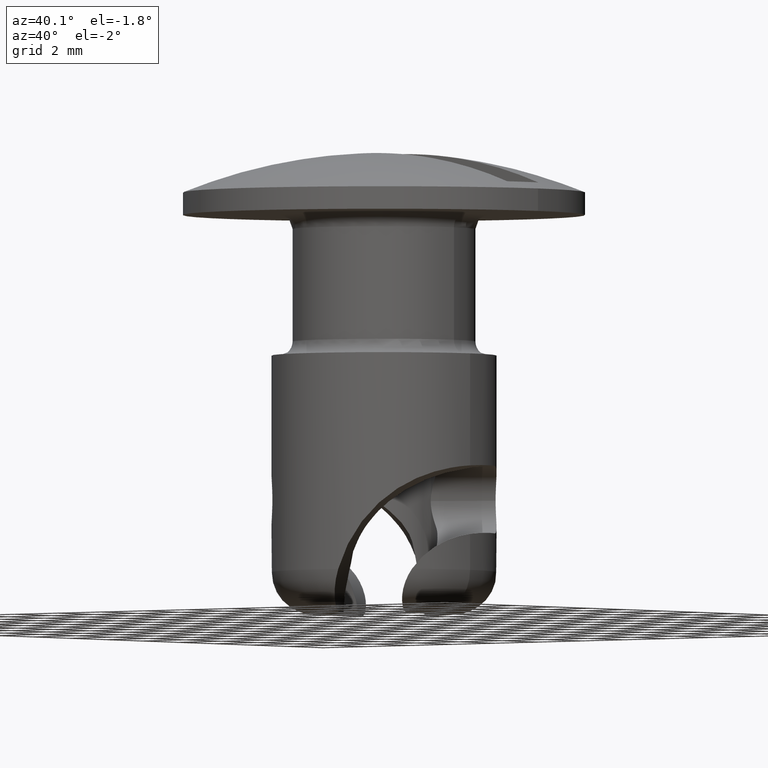
[diagram: clean part render]
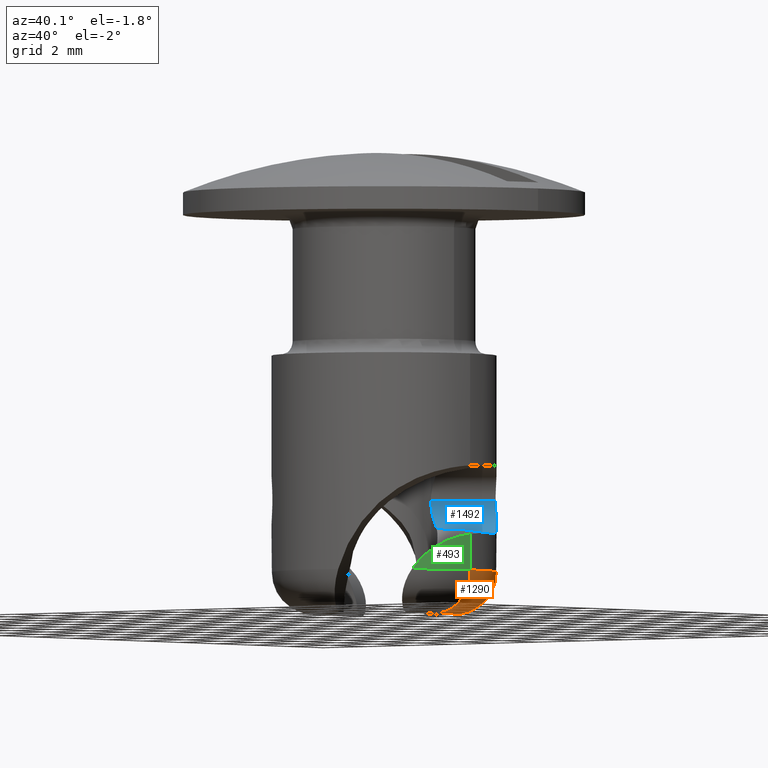
[diagram: same view with three faces highlighted in distinct colors, each labeled with its STEP entity id]
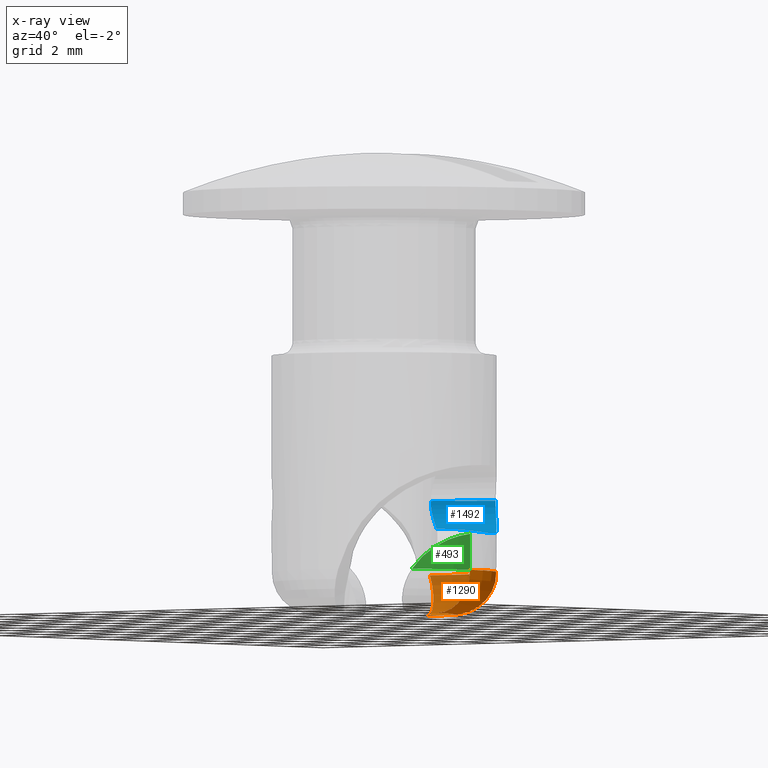
[diagram: x-ray of the same camera — body ghosted, the three highlighted faces saturated]
A machine part, auxiliary view with three faces highlighted in distinct colors.
The next image is the same camera in x-ray (body ghosted, the three faces saturated) — at least one of them is partly hidden behind the body in this view.
Their STEP definitions:

[orange] entity #1290 — the highlighted toroidal blend (fillet) surface has major radius 2.5 mm and minor (blend) radius 1.5 mm.
#93 = CARTESIAN_POINT ( 'NONE',  ( 0.0000000000000000000, 0.0000000000000000000, -4.055928000000000600 ) ) ;
#104 = CARTESIAN_POINT ( 'NONE',  ( 0.0000000000000000000, 0.0000000000000000000, -2.555927999999999800 ) ) ;
#157 = DIRECTION ( 'NONE',  ( 1.000000000000000000, 0.0000000000000000000, 0.0000000000000000000 ) ) ;
#184 = AXIS2_PLACEMENT_3D ( 'NONE', #93, #1582, #1514 ) ;
#283 = CARTESIAN_POINT ( 'NONE',  ( -1.108397808777359800, 3.843364970634185300, -2.555927999999999800 ) ) ;
#300 = CARTESIAN_POINT ( 'NONE',  ( -1.077547685918882600, 3.852261916107252200, -2.656490853154524200 ) ) ;
#406 = CARTESIAN_POINT ( 'NONE',  ( 2.500000000000045300, 0.0000000000000000000, -2.555927999999999800 ) ) ;
#420 = TOROIDAL_SURFACE ( 'NONE', #2296, 2.500000000000045300, 1.500000000000000000 ) ;
#445 = CARTESIAN_POINT ( 'NONE',  ( 2.500000000000045300, 0.0000000000000000000, -4.055928000000000600 ) ) ;
#496 = CARTESIAN_POINT ( 'NONE',  ( -1.045011278428364700, 3.850823402305097300, -2.755590278062849800 ) ) ;
#506 = EDGE_CURVE ( 'NONE', #1738, #1114, #2433, .T. ) ;
#567 = CARTESIAN_POINT ( 'NONE',  ( -0.05678652249461620800, 2.499354974961175200, -4.055928000000000600 ) ) ;
#610 = DIRECTION ( 'NONE',  ( 0.0000000000000000000, 0.0000000000000000000, -1.000000000000000000 ) ) ;
#638 = CIRCLE ( 'NONE', #661, 1.500000000000000400 ) ;
#661 = AXIS2_PLACEMENT_3D ( 'NONE', #406, #1864, #610 ) ;
#714 = DIRECTION ( 'NONE',  ( 0.0000000000000000000, 0.0000000000000000000, 1.000000000000000000 ) ) ;
#781 = CARTESIAN_POINT ( 'NONE',  ( -0.7405787421037746100, 3.606501496627410500, -3.485310298646945500 ) ) ;
#794 = CARTESIAN_POINT ( 'NONE',  ( -0.9393113789079501300, 3.806504232003268500, -3.047904179911969300 ) ) ;
#808 = CARTESIAN_POINT ( 'NONE',  ( -0.6969373868598151000, 3.548447780571618400, -3.562983429896619600 ) ) ;
#829 = CARTESIAN_POINT ( 'NONE',  ( -0.8629140910424201200, 3.744373541031671900, -3.232700028630489400 ) ) ;
#838 = CARTESIAN_POINT ( 'NONE',  ( -0.8234494711917143000, 3.704232393046660700, -3.320244744276941600 ) ) ;
#909 = ORIENTED_EDGE ( 'NONE', *, *, #1274, .F. ) ;
#926 = CARTESIAN_POINT ( 'NONE',  ( -0.2666432078907424700, 2.862513171778047600, -4.021326483487508000 ) ) ;
#935 = CARTESIAN_POINT ( 'NONE',  ( -0.1611035543529213400, 2.680037477917260400, -4.055928000000033500 ) ) ;
#968 = CARTESIAN_POINT ( 'NONE',  ( -0.4667394063586882100, 3.199167724819091100, -3.879260321841057700 ) ) ;
#1038 = VERTEX_POINT ( 'NONE', #2332 ) ;
#1066 = B_SPLINE_CURVE_WITH_KNOTS ( 'NONE', 3,
 ( #283, #300, #496, #1672, #794, #829, #838, #781, #808, #2472, #968, #926, #935, #1237 ),
 .UNSPECIFIED., .F., .F.,
 ( 4, 2, 2, 2, 2, 2, 4 ),
 ( 2.069731377641049100E-007, 0.0003124171688556495200, 0.0006246273645735349800, 0.0009368375602914204000, 0.001249047756009305800, 0.001873468147445075800, 0.002497888538880845100 ),
 .UNSPECIFIED. ) ;
#1114 = VERTEX_POINT ( 'NONE', #445 ) ;
#1237 = CARTESIAN_POINT ( 'NONE',  ( -0.05678652249461620800, 2.499354974961175200, -4.055928000000000600 ) ) ;
#1274 = EDGE_CURVE ( 'NONE', #2068, #1738, #1066, .T. ) ;
#1290 = ADVANCED_FACE ( 'NONE', ( #1534 ), #420, .T. ) ;
#1369 = EDGE_CURVE ( 'NONE', #1038, #2068, #1942, .T. ) ;
#1514 = DIRECTION ( 'NONE',  ( 1.000000000000000000, 0.0000000000000000000, 0.0000000000000000000 ) ) ;
#1534 = FACE_OUTER_BOUND ( 'NONE', #2486, .T. ) ;
#1563 = EDGE_CURVE ( 'NONE', #1114, #1038, #638, .T. ) ;
#1581 = CARTESIAN_POINT ( 'NONE',  ( 0.0000000000000000000, 0.0000000000000000000, -2.555927999999999800 ) ) ;
#1582 = DIRECTION ( 'NONE',  ( -0.0000000000000000000, -0.0000000000000000000, -1.000000000000000000 ) ) ;
#1672 = CARTESIAN_POINT ( 'NONE',  ( -0.9761126366509662600, 3.828150070365853500, -2.950779561917071800 ) ) ;
#1706 = AXIS2_PLACEMENT_3D ( 'NONE', #104, #2639, #157 ) ;
#1738 = VERTEX_POINT ( 'NONE', #567 ) ;
#1864 = DIRECTION ( 'NONE',  ( 0.0000000000000000000, -1.000000000000000000, 0.0000000000000000000 ) ) ;
#1942 = CIRCLE ( 'NONE', #1706, 4.000000000000045300 ) ;
#2022 = ORIENTED_EDGE ( 'NONE', *, *, #506, .F. ) ;
#2068 = VERTEX_POINT ( 'NONE', #2321 ) ;
#2183 = DIRECTION ( 'NONE',  ( 1.000000000000000000, 0.0000000000000000000, 0.0000000000000000000 ) ) ;
#2296 = AXIS2_PLACEMENT_3D ( 'NONE', #1581, #714, #2183 ) ;
#2321 = CARTESIAN_POINT ( 'NONE',  ( -1.108397808777359800, 3.843364970634185300, -2.555927999999999800 ) ) ;
#2332 = CARTESIAN_POINT ( 'NONE',  ( 4.000000000000045300, 4.898587196589468000E-016, -2.555927999999999800 ) ) ;
#2433 = CIRCLE ( 'NONE', #184, 2.500000000000045300 ) ;
#2472 = CARTESIAN_POINT ( 'NONE',  ( -0.5632610136568372300, 3.356266332559755900, -3.770288615684792800 ) ) ;
#2486 = EDGE_LOOP ( 'NONE', ( #2548, #2022, #909, #2499 ) ) ;
#2499 = ORIENTED_EDGE ( 'NONE', *, *, #1369, .F. ) ;
#2548 = ORIENTED_EDGE ( 'NONE', *, *, #1563, .F. ) ;
#2639 = DIRECTION ( 'NONE',  ( 0.0000000000000000000, 0.0000000000000000000, 1.000000000000000000 ) ) ;

[blue] entity #1492 — the highlighted cylindrical surface (edge-blend (fillet) strip) has radius 1.2 mm, axis along (0.866, 0.5, 0).
#10 = CARTESIAN_POINT ( 'NONE',  ( 3.036971532233637000, 2.605665484412850400, -0.9588756427568537700 ) ) ;
#17 = CARTESIAN_POINT ( 'NONE',  ( 2.704543060676039400, 2.947108215344199900, -0.1596158002437035300 ) ) ;
#25 = CARTESIAN_POINT ( 'NONE',  ( 1.207483861072558000, 1.466959777756470000, -0.9977644262425080500 ) ) ;
#40 = LINE ( 'NONE', #512, #2692 ) ;
#119 = CARTESIAN_POINT ( 'NONE',  ( 1.658605908866766400, 1.727010694693369900, -0.9979984178830076900 ) ) ;
#130 = CARTESIAN_POINT ( 'NONE',  ( 3.147640819103137800, 2.071363039842953700, -1.182951232793251700 ) ) ;
#132 = DIRECTION ( 'NONE',  ( 0.8660255280255737500, 0.4999997848079799100, 0.0000000000000000000 ) ) ;
#139 = CARTESIAN_POINT ( 'NONE',  ( 3.464102112102345200, 1.999999139231945200, -1.200000000000000000 ) ) ;
#196 = CARTESIAN_POINT ( 'NONE',  ( 3.124139648633555300, 2.502170647336450700, -1.048117978175988800 ) ) ;
#241 = AXIS2_PLACEMENT_3D ( 'NONE', #2698, #132, #337 ) ;
#286 = CARTESIAN_POINT ( 'NONE',  ( 1.074029800010463800, 1.576808178494244900, -0.8896143331664648800 ) ) ;
#335 = CARTESIAN_POINT ( 'NONE',  ( 3.464102112102345200, 1.999999139231945200, -1.200000000000000000 ) ) ;
#337 = DIRECTION ( 'NONE',  ( -0.4999997848079937300, 0.8660255280255657600, 0.0000000000000000000 ) ) ;
#512 = CARTESIAN_POINT ( 'NONE',  ( -863.1614256552416000, -496.9605550351173000, 0.0000000000000000000 ) ) ;
#521 = VERTEX_POINT ( 'NONE', #25 ) ;
#565 = B_SPLINE_CURVE_WITH_KNOTS ( 'NONE', 3,
 ( #1596, #119, #1181, #2607, #1399, #130, #1607, #335 ),
 .UNSPECIFIED., .F., .F.,
 ( 4, 2, 2, 4 ),
 ( 0.0000000000000000000, 0.5000000000000001100, 0.7500000000000000000, 1.000000000000000000 ),
 .UNSPECIFIED. ) ;
#644 = CARTESIAN_POINT ( 'NONE',  ( 2.704543060675894700, 2.947108215344360200, 0.0000000000000000000 ) ) ;
#670 = CARTESIAN_POINT ( 'NONE',  ( 0.7435054410721008100, 1.752029059288228600, -0.4063076577708912800 ) ) ;
#777 = FACE_OUTER_BOUND ( 'NONE', #2013, .T. ) ;
#880 = ORIENTED_EDGE ( 'NONE', *, *, #1124, .F. ) ;
#884 = CARTESIAN_POINT ( 'NONE',  ( 0.6757313475699595600, 1.775773898812601300, 0.0000000000000000000 ) ) ;
#929 = EDGE_CURVE ( 'NONE', #521, #2334, #2603, .T. ) ;
#957 = VERTEX_POINT ( 'NONE', #139 ) ;
#977 = CARTESIAN_POINT ( 'NONE',  ( 2.704543060675894700, 2.947108215344360200, 0.0000000000000000000 ) ) ;
#1095 = CARTESIAN_POINT ( 'NONE',  ( 0.6757313475702198000, 1.775773898812504900, -0.2052658798624447700 ) ) ;
#1124 = EDGE_CURVE ( 'NONE', #1686, #957, #1968, .T. ) ;
#1169 = EDGE_CURVE ( 'NONE', #2334, #1686, #40, .T. ) ;
#1181 = CARTESIAN_POINT ( 'NONE',  ( 2.068010333481337300, 1.908746901222477600, -1.034743819701792000 ) ) ;
#1270 = CARTESIAN_POINT ( 'NONE',  ( 3.385282426136912500, 2.136518918302083800, -1.200000000000330600 ) ) ;
#1283 = CYLINDRICAL_SURFACE ( 'NONE', #241, 1.200000000000030800 ) ;
#1399 = CARTESIAN_POINT ( 'NONE',  ( 2.806949207771039400, 2.071763536330569100, -1.138034043217460000 ) ) ;
#1484 = CARTESIAN_POINT ( 'NONE',  ( 3.464102112102345200, 1.999999139231945200, -1.200000000000000000 ) ) ;
#1492 = ADVANCED_FACE ( 'NONE', ( #777 ), #1283, .F. ) ;
#1522 = CARTESIAN_POINT ( 'NONE',  ( 1.207483861072558000, 1.466959777756470000, -0.9977644262425080500 ) ) ;
#1596 = CARTESIAN_POINT ( 'NONE',  ( 1.207483861072558000, 1.466959777756470000, -0.9977644262425080500 ) ) ;
#1607 = CARTESIAN_POINT ( 'NONE',  ( 3.310230571246916700, 2.046952821193791700, -1.200000000000000400 ) ) ;
#1666 = CARTESIAN_POINT ( 'NONE',  ( 3.297427199505717600, 2.268938156168254700, -1.168081016721075800 ) ) ;
#1686 = VERTEX_POINT ( 'NONE', #977 ) ;
#1690 = CARTESIAN_POINT ( 'NONE',  ( 2.729401452510312500, 2.924777234815317200, -0.3161404939859415700 ) ) ;
#1776 = DIRECTION ( 'NONE',  ( 0.8660255280255737500, 0.4999997848079799100, 0.0000000000000000000 ) ) ;
#1922 = CARTESIAN_POINT ( 'NONE',  ( 0.9432357420663581800, 1.653092039748210700, -0.7454964008656654900 ) ) ;
#1968 = B_SPLINE_CURVE_WITH_KNOTS ( 'NONE', 3,
 ( #644, #17, #1690, #2503, #2094, #10, #196, #1666, #1270, #1484 ),
 .UNSPECIFIED., .F., .F.,
 ( 4, 2, 2, 2, 4 ),
 ( 3.683903162878739600E-017, 0.0004718227149638785700, 0.0009436454299277202800, 0.001415468144891561900, 0.001887290859855403700 ),
 .UNSPECIFIED. ) ;
#2005 = CARTESIAN_POINT ( 'NONE',  ( 0.6757313475699595600, 1.775773898812601300, 0.0000000000000000000 ) ) ;
#2013 = EDGE_LOOP ( 'NONE', ( #2595, #2257, #2522, #880 ) ) ;
#2094 = CARTESIAN_POINT ( 'NONE',  ( 2.885518251882607900, 2.772448939531677600, -0.7388958392022766400 ) ) ;
#2257 = ORIENTED_EDGE ( 'NONE', *, *, #929, .F. ) ;
#2275 = EDGE_CURVE ( 'NONE', #521, #957, #565, .T. ) ;
#2334 = VERTEX_POINT ( 'NONE', #2005 ) ;
#2503 = CARTESIAN_POINT ( 'NONE',  ( 2.819988114319476000, 2.837537875933325600, -0.6063751524762344100 ) ) ;
#2522 = ORIENTED_EDGE ( 'NONE', *, *, #2275, .T. ) ;
#2595 = ORIENTED_EDGE ( 'NONE', *, *, #1169, .F. ) ;
#2603 = B_SPLINE_CURVE_WITH_KNOTS ( 'NONE', 3,
 ( #1522, #286, #1922, #670, #1095, #884 ),
 .UNSPECIFIED., .F., .F.,
 ( 4, 2, 4 ),
 ( 0.006500390030137589500, 0.007105446345525037000, 0.007710502660912483700 ),
 .UNSPECIFIED. ) ;
#2607 = CARTESIAN_POINT ( 'NONE',  ( 2.628723722647357900, 2.047967940692878600, -1.110214597952898800 ) ) ;
#2692 = VECTOR ( 'NONE', #1776, 1000.000000000000000 ) ;
#2698 = CARTESIAN_POINT ( 'NONE',  ( -862.5614259134719100, -497.9997856687479600, 0.0000000000000000000 ) ) ;

[green] entity #493 — the highlighted cylindrical surface (partial cylindrical patch) has radius 4 mm, axis along (0, 0, -1).
#244 = CIRCLE ( 'NONE', #2095, 4.000000000000045300 ) ;
#365 = CARTESIAN_POINT ( 'NONE',  ( 3.337876368205646900, -2.208591252879983400, -2.357751434589429300 ) ) ;
#380 = EDGE_CURVE ( 'NONE', #2000, #1038, #539, .T. ) ;
#392 = CARTESIAN_POINT ( 'NONE',  ( 3.686165826954456800, -1.556416136383102600, -1.753501811202300600 ) ) ;
#493 = ADVANCED_FACE ( 'NONE', ( #1951 ), #2357, .T. ) ;
#524 = CARTESIAN_POINT ( 'NONE',  ( 3.426276757157907100, -2.072368069220359700, -2.182880239772775300 ) ) ;
#532 = CARTESIAN_POINT ( 'NONE',  ( 3.558517039135628200, -1.829064498568275800, -1.953057623003211100 ) ) ;
#539 = LINE ( 'NONE', #1019, #2045 ) ;
#541 = CARTESIAN_POINT ( 'NONE',  ( 3.835524558255945800, -1.155506911344663900, -1.541433582963210400 ) ) ;
#592 = CARTESIAN_POINT ( 'NONE',  ( 3.896596564090508300, -0.9328760040934711600, -1.461887495207947300 ) ) ;
#613 = CARTESIAN_POINT ( 'NONE',  ( 4.000000000000045300, -5.353783739563653500E-017, -1.275194207900366200 ) ) ;
#730 = AXIS2_PLACEMENT_3D ( 'NONE', #2524, #1709, #2645 ) ;
#751 = DIRECTION ( 'NONE',  ( 0.0000000000000000000, 0.0000000000000000000, 1.000000000000000000 ) ) ;
#881 = ORIENTED_EDGE ( 'NONE', *, *, #2245, .T. ) ;
#944 = CARTESIAN_POINT ( 'NONE',  ( 3.725758489241101300, -1.459566680434840800, -1.696069507202641300 ) ) ;
#956 = CARTESIAN_POINT ( 'NONE',  ( 3.257253687949085200, -2.321701620006844500, -2.555927999999999800 ) ) ;
#1019 = CARTESIAN_POINT ( 'NONE',  ( 4.000000000000045300, 4.898587196589468000E-016, 0.0000000000000000000 ) ) ;
#1038 = VERTEX_POINT ( 'NONE', #2332 ) ;
#1218 = CARTESIAN_POINT ( 'NONE',  ( 3.257253687949085200, -2.321701620006844500, -2.555927999999999800 ) ) ;
#1268 = ORIENTED_EDGE ( 'NONE', *, *, #1406, .F. ) ;
#1385 = CARTESIAN_POINT ( 'NONE',  ( 3.602710146835719200, -1.740898989398143500, -1.881690569811889300 ) ) ;
#1406 = EDGE_CURVE ( 'NONE', #1526, #2000, #2295, .T. ) ;
#1526 = VERTEX_POINT ( 'NONE', #1218 ) ;
#1551 = CARTESIAN_POINT ( 'NONE',  ( 4.000000000000046200, -0.2381370317011862500, -1.303270370534325600 ) ) ;
#1573 = CARTESIAN_POINT ( 'NONE',  ( 3.978266974383842100, -0.4765651086915536100, -1.343676006480481600 ) ) ;
#1709 = DIRECTION ( 'NONE',  ( 0.0000000000000000000, 0.0000000000000000000, -1.000000000000000000 ) ) ;
#1951 = FACE_OUTER_BOUND ( 'NONE', #2288, .T. ) ;
#1996 = CARTESIAN_POINT ( 'NONE',  ( 0.0000000000000000000, 0.0000000000000000000, -2.555927999999999800 ) ) ;
#2000 = VERTEX_POINT ( 'NONE', #2520 ) ;
#2045 = VECTOR ( 'NONE', #2248, 1000.000000000000000 ) ;
#2095 = AXIS2_PLACEMENT_3D ( 'NONE', #1996, #751, #2195 ) ;
#2195 = DIRECTION ( 'NONE',  ( 1.000000000000000000, 0.0000000000000000000, 0.0000000000000000000 ) ) ;
#2245 = EDGE_CURVE ( 'NONE', #1526, #1038, #244, .T. ) ;
#2248 = DIRECTION ( 'NONE',  ( 0.0000000000000000000, 0.0000000000000000000, -1.000000000000000000 ) ) ;
#2288 = EDGE_LOOP ( 'NONE', ( #2475, #1268, #881 ) ) ;
#2295 = B_SPLINE_CURVE_WITH_KNOTS ( 'NONE', 3,
 ( #956, #365, #524, #532, #1385, #392, #944, #541, #592, #1573, #1551, #613 ),
 .UNSPECIFIED., .F., .F.,
 ( 4, 2, 2, 2, 2, 4 ),
 ( 0.0000000000000000000, 0.0007155004376440945700, 0.001073250656466141400, 0.001431000875288188300, 0.002146501312932282800, 0.002862001750576377000 ),
 .UNSPECIFIED. ) ;
#2332 = CARTESIAN_POINT ( 'NONE',  ( 4.000000000000045300, 4.898587196589468000E-016, -2.555927999999999800 ) ) ;
#2357 = CYLINDRICAL_SURFACE ( 'NONE', #730, 4.000000000000045300 ) ;
#2475 = ORIENTED_EDGE ( 'NONE', *, *, #380, .F. ) ;
#2520 = CARTESIAN_POINT ( 'NONE',  ( 4.000000000000045300, -5.353783739563653500E-017, -1.275194207900366200 ) ) ;
#2524 = CARTESIAN_POINT ( 'NONE',  ( 0.0000000000000000000, 0.0000000000000000000, 0.0000000000000000000 ) ) ;
#2645 = DIRECTION ( 'NONE',  ( -1.000000000000000000, 0.0000000000000000000, 0.0000000000000000000 ) ) ;